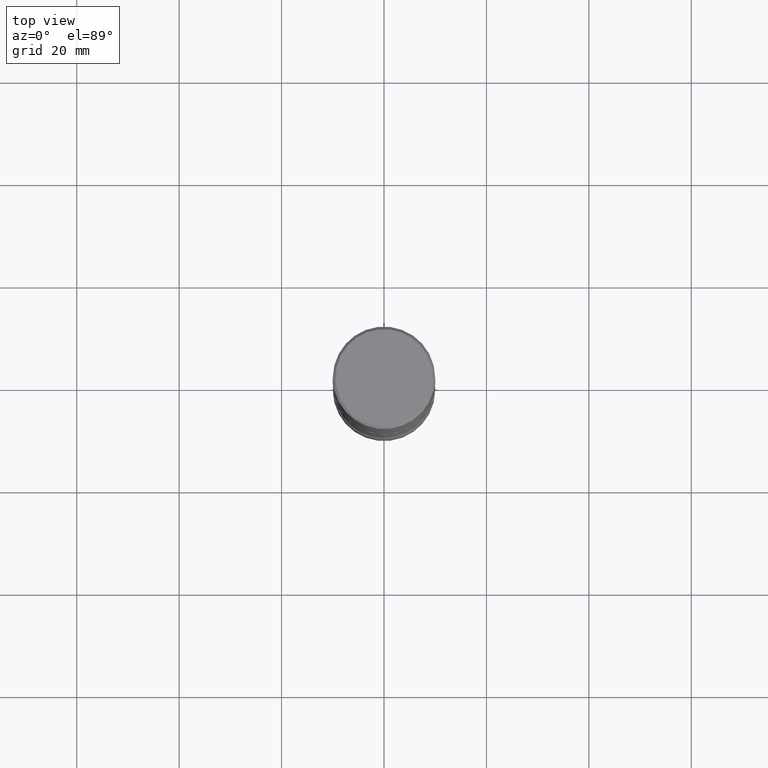
[diagram: clean part render]
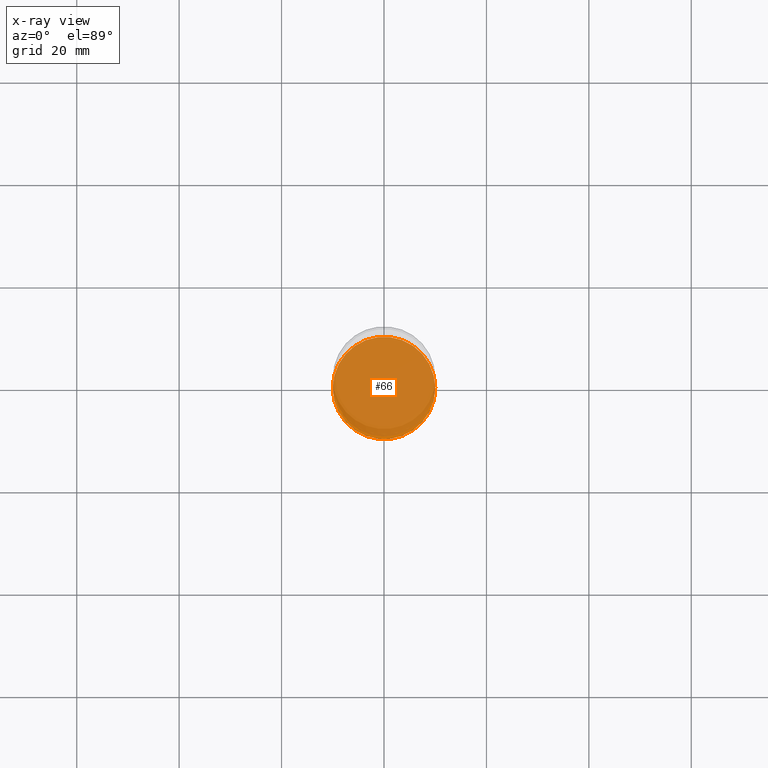
[diagram: x-ray — body ghosted, one internal face saturated and labeled with its STEP entity id]
A machine part, top view, then the same camera in x-ray: the body is ghosted and one INTERNAL B-rep face — a face not visible from any outside direction — is saturated and labeled: STEP entity #66.
In plain terms, the highlighted planar face has unit normal (0, -0, -1).
Its self-contained STEP definition (entity closure, byte-faithful):
#35 = DIRECTION ( 'NONE',  ( -2.445468806185136597E-29, 3.491481338843145583E-15, 1.000000000000000000 ) ) ;
#66 = ADVANCED_FACE ( 'NONE', ( #357 ), #409, .F. ) ;
#85 = AXIS2_PLACEMENT_3D ( 'NONE', #514, #115, #545 ) ;
#97 = EDGE_CURVE ( 'NONE', #161, #533, #167, .T. ) ;
#99 = ORIENTED_EDGE ( 'NONE', *, *, #171, .T. ) ;
#115 = DIRECTION ( 'NONE',  ( -2.445468806185136597E-29, 3.491481338843145583E-15, 1.000000000000000000 ) ) ;
#150 = CARTESIAN_POINT ( 'NONE',  ( -0.3937000000000004385, -1.452243557877779036E-14, -4.566900000000000404 ) ) ;
#161 = VERTEX_POINT ( 'NONE', #150 ) ;
#167 = CIRCLE ( 'NONE', #85, 0.3937000000000004385 ) ;
#171 = EDGE_CURVE ( 'NONE', #533, #161, #398, .T. ) ;
#209 = DIRECTION ( 'NONE',  ( 1.000000000000000000, -6.982962677686270655E-15, 0.000000000000000000 ) ) ;
#211 = AXIS2_PLACEMENT_3D ( 'NONE', #542, #534, #324 ) ;
#287 = EDGE_LOOP ( 'NONE', ( #99, #485 ) ) ;
#324 = DIRECTION ( 'NONE',  ( -1.000000000000000000, 6.982962677686265922E-15, -4.876176775795935793E-29 ) ) ;
#354 = AXIS2_PLACEMENT_3D ( 'NONE', #438, #35, #209 ) ;
#357 = FACE_OUTER_BOUND ( 'NONE', #287, .T. ) ;
#387 = CARTESIAN_POINT ( 'NONE',  ( 0.3937000000000004385, -1.869443853256785070E-14, -4.566900000000000404 ) ) ;
#398 = CIRCLE ( 'NONE', #354, 0.3937000000000004385 ) ;
#409 = PLANE ( 'NONE',  #211 ) ;
#438 = CARTESIAN_POINT ( 'NONE',  ( 1.116821149096690103E-28, -1.594524612636276117E-14, -4.566900000000000404 ) ) ;
#485 = ORIENTED_EDGE ( 'NONE', *, *, #97, .T. ) ;
#514 = CARTESIAN_POINT ( 'NONE',  ( 1.116821149096690103E-28, -1.594524612636276117E-14, -4.566900000000000404 ) ) ;
#533 = VERTEX_POINT ( 'NONE', #387 ) ;
#534 = DIRECTION ( 'NONE',  ( 2.438088387897960049E-29, -3.491481338843145188E-15, -1.000000000000000000 ) ) ;
#542 = CARTESIAN_POINT ( 'NONE',  ( 1.116821149096690103E-28, -1.594524612636276117E-14, -4.566900000000000404 ) ) ;
#545 = DIRECTION ( 'NONE',  ( 1.000000000000000000, -6.982962677686270655E-15, 0.000000000000000000 ) ) ;